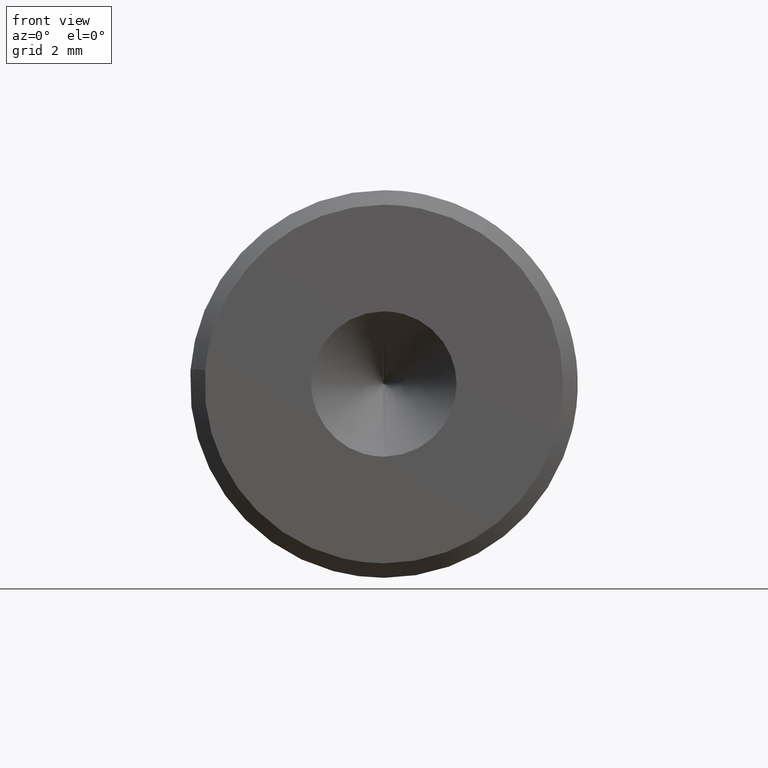
[diagram: clean part render]
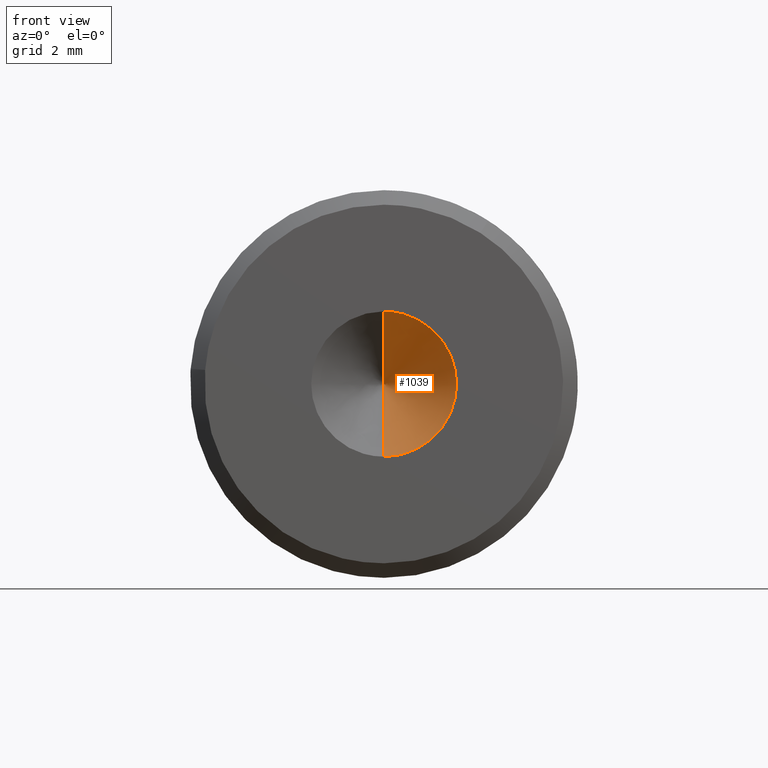
[diagram: same view with one face highlighted and labeled with its STEP entity id]
A machine part, front view. The second image highlights one B-rep face of the part: STEP entity #1039.
In plain terms, the highlighted face is a freeform B-spline surface patch.
Its self-contained STEP definition (entity closure, byte-faithful):
#920=CARTESIAN_POINT('',(0.0,7.408715E-016,1.499999999999998));
#921=VERTEX_POINT('',#920);
#922=CARTESIAN_POINT('',(0.0,7.408715E-016,-1.500000000000003));
#923=VERTEX_POINT('',#922);
#939=CARTESIAN_POINT('',(0.0,1.500000000000000,-2.220446E-015));
#940=VERTEX_POINT('',#939);
#941=CARTESIAN_POINT('',(0.0,1.500000000000000,-2.220446E-015));
#942=CARTESIAN_POINT('',(0.0,7.408715E-016,-1.500000000000003));
#943=QUASI_UNIFORM_CURVE('',1,(#941,#942),.UNSPECIFIED.,.F.,.U.);
#944=EDGE_CURVE('',#940,#923,#943,.T.);
#946=CARTESIAN_POINT('',(0.0,1.500000000000000,-2.220446E-015));
#947=CARTESIAN_POINT('',(0.0,7.408715E-016,1.499999999999998));
#948=QUASI_UNIFORM_CURVE('',1,(#946,#947),.UNSPECIFIED.,.F.,.U.);
#949=EDGE_CURVE('',#940,#921,#948,.T.);
#1002=CARTESIAN_POINT('',(0.0,1.500000000000002,-2.220446E-015));
#1003=CARTESIAN_POINT('',(-0.040271598912396,-0.038437500000000,1.537910315892086));
#1004=CARTESIAN_POINT('',(0.0,1.500000000000003,-2.220446E-015));
#1005=CARTESIAN_POINT('',(1.580347726439253,-0.038437500000000,1.580347726439255));
#1006=CARTESIAN_POINT('',(0.0,1.500000000000002,-2.220446E-015));
#1007=CARTESIAN_POINT('',(1.537910315892088,-0.038437500000000,-0.040271598912394));
#1008=CARTESIAN_POINT('',(0.0,1.500000000000003,-2.220446E-015));
#1009=CARTESIAN_POINT('',(1.495472905344923,-0.038437500000000,-1.660890924264043));
#1010=CARTESIAN_POINT('',(0.0,1.500000000000002,-2.220446E-015));
#1011=CARTESIAN_POINT('',(-0.120704415083804,-0.038437500000000,-1.533695010615065));
#1019=(BOUNDED_SURFACE()B_SPLINE_SURFACE(1,2,((#1002,#1004,#1006,#1008,#1010),(#1003,#1005,#1007,#1009,#1011)),.UNSPECIFIED.,.F.,.F.,.U.)B_SPLINE_SURFACE_WITH_KNOTS((2,2),(3,2,3),(0.0,1.0),(0.0,1.0,2.0),.UNSPECIFIED.)GEOMETRIC_REPRESENTATION_ITEM()RATIONAL_B_SPLINE_SURFACE(((1.0,0.688354575693754,1.0,0.688354575693754,1.0),(1.0,0.688354575693754,1.0,0.688354575693754,1.0)))REPRESENTATION_ITEM('')SURFACE());
#1020=ORIENTED_EDGE('',*,*,#944,.T.);
#1021=CARTESIAN_POINT('',(0.0,0.0,-1.500000000000002));
#1022=CARTESIAN_POINT('',(1.500000000000000,0.0,-1.500000000000002));
#1023=CARTESIAN_POINT('',(1.500000000000000,0.0,-2.220446E-015));
#1024=CARTESIAN_POINT('',(1.500000000000000,0.0,1.499999999999998));
#1025=CARTESIAN_POINT('',(0.0,0.0,1.499999999999998));
#1033=(BOUNDED_CURVE()B_SPLINE_CURVE(2,(#1021,#1022,#1023,#1024,#1025),.UNSPECIFIED.,.F.,.U.)B_SPLINE_CURVE_WITH_KNOTS((3,2,3),(0.0,0.500000000000000,1.0),.UNSPECIFIED.)CURVE()GEOMETRIC_REPRESENTATION_ITEM()RATIONAL_B_SPLINE_CURVE((1.0,0.707106781186548,1.0,0.707106781186548,1.0))REPRESENTATION_ITEM(''));
#1034=EDGE_CURVE('',#923,#921,#1033,.T.);
#1035=ORIENTED_EDGE('',*,*,#1034,.T.);
#1036=ORIENTED_EDGE('',*,*,#949,.F.);
#1037=EDGE_LOOP('',(#1020,#1035,#1036));
#1038=FACE_OUTER_BOUND('',#1037,.T.);
#1039=ADVANCED_FACE('',(#1038),#1019,.F.);